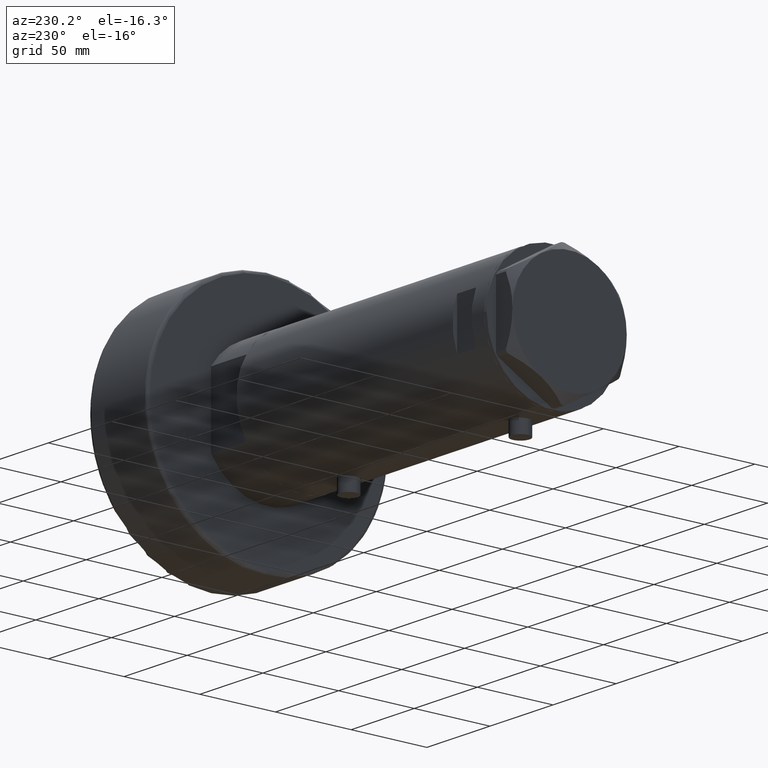
[diagram: clean part render]
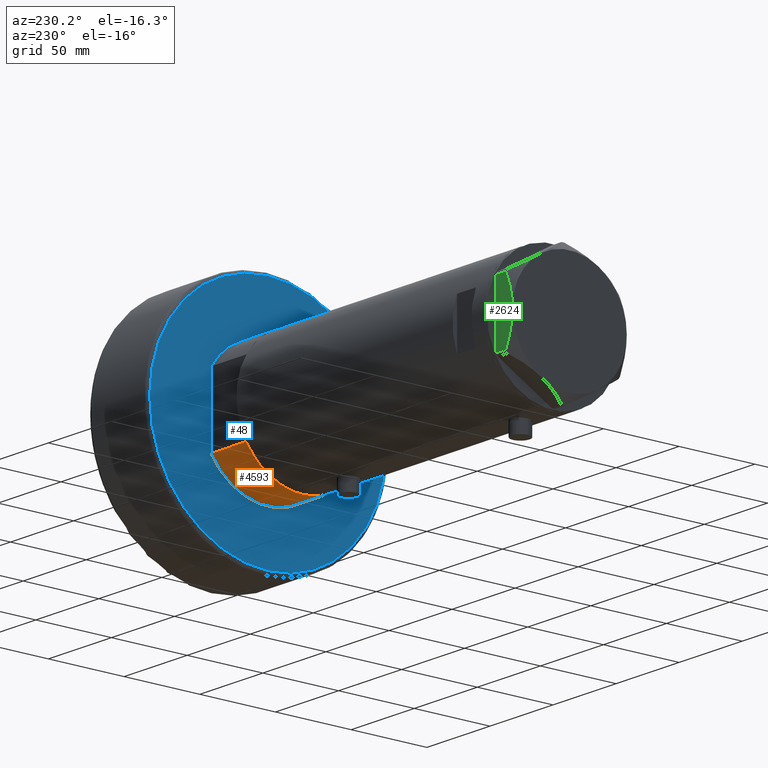
[diagram: same view with three faces highlighted in distinct colors, each labeled with its STEP entity id]
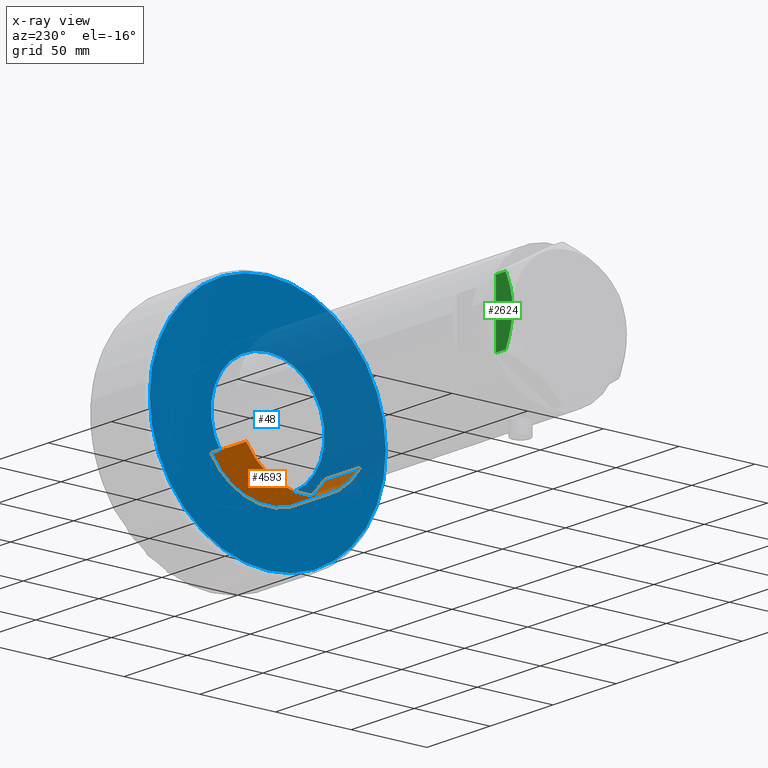
[diagram: x-ray of the same camera — body ghosted, the three highlighted faces saturated]
A machine part, auxiliary view with three faces highlighted in distinct colors.
The next image is the same camera in x-ray (body ghosted, the three faces saturated) — at least one of them is partly hidden behind the body in this view.
Their STEP definitions:

[orange] entity #4593 — the highlighted cylindrical surface (partial cylindrical patch) has radius 44 mm, axis along (-1, -0, 0).
#21 = AXIS2_PLACEMENT_3D ( 'NONE', #1070, #3760, #3362 ) ;
#32 = AXIS2_PLACEMENT_3D ( 'NONE', #3606, #3214, #1327 ) ;
#121 = AXIS2_PLACEMENT_3D ( 'NONE', #2471, #2080, #2880 ) ;
#223 = VERTEX_POINT ( 'NONE', #3506 ) ;
#242 = LINE ( 'NONE', #3164, #1391 ) ;
#502 = VERTEX_POINT ( 'NONE', #4930 ) ;
#667 = CARTESIAN_POINT ( 'NONE',  ( 23.01629857296780557, -37.50000000000000000, 27.89999999999999858 ) ) ;
#890 = DIRECTION ( 'NONE',  ( -0.000000000000000000, -0.000000000000000000, 1.000000000000000000 ) ) ;
#1004 = EDGE_CURVE ( 'NONE', #3836, #223, #3453, .T. ) ;
#1070 = CARTESIAN_POINT ( 'NONE',  ( 0.000000000000000000, 0.000000000000000000, 27.89999999999999858 ) ) ;
#1234 = DIRECTION ( 'NONE',  ( -0.000000000000000000, -0.000000000000000000, 1.000000000000000000 ) ) ;
#1327 = DIRECTION ( 'NONE',  ( -1.000000000000000000, 0.000000000000000000, 0.000000000000000000 ) ) ;
#1391 = VECTOR ( 'NONE', #890, 1000.000000000000000 ) ;
#1546 = EDGE_CURVE ( 'NONE', #3091, #3836, #2327, .T. ) ;
#1945 = CARTESIAN_POINT ( 'NONE',  ( 23.01629857296780557, -37.50000000000000000, 0.000000000000000000 ) ) ;
#2080 = DIRECTION ( 'NONE',  ( 0.000000000000000000, 0.000000000000000000, 1.000000000000000000 ) ) ;
#2225 = CIRCLE ( 'NONE', #121, 44.00000000000000000 ) ;
#2257 = ORIENTED_EDGE ( 'NONE', *, *, #3747, .T. ) ;
#2327 = LINE ( 'NONE', #1945, #3215 ) ;
#2471 = CARTESIAN_POINT ( 'NONE',  ( 0.000000000000000000, 0.000000000000000000, 0.000000000000000000 ) ) ;
#2506 = CARTESIAN_POINT ( 'NONE',  ( 23.01629857296780557, -37.50000000000000000, 0.000000000000000000 ) ) ;
#2880 = DIRECTION ( 'NONE',  ( 1.000000000000000000, 0.000000000000000000, 0.000000000000000000 ) ) ;
#2892 = EDGE_CURVE ( 'NONE', #3091, #502, #2225, .T. ) ;
#3091 = VERTEX_POINT ( 'NONE', #2506 ) ;
#3164 = CARTESIAN_POINT ( 'NONE',  ( 23.01629857296780557, 37.50000000000000000, 0.000000000000000000 ) ) ;
#3165 = EDGE_LOOP ( 'NONE', ( #4464, #4767, #3347, #2257 ) ) ;
#3214 = DIRECTION ( 'NONE',  ( -0.000000000000000000, -0.000000000000000000, -1.000000000000000000 ) ) ;
#3215 = VECTOR ( 'NONE', #1234, 1000.000000000000000 ) ;
#3347 = ORIENTED_EDGE ( 'NONE', *, *, #2892, .T. ) ;
#3362 = DIRECTION ( 'NONE',  ( 1.000000000000000000, 0.000000000000000000, 0.000000000000000000 ) ) ;
#3453 = CIRCLE ( 'NONE', #21, 44.00000000000000000 ) ;
#3506 = CARTESIAN_POINT ( 'NONE',  ( 23.01629857296780557, 37.50000000000000000, 27.89999999999999858 ) ) ;
#3606 = CARTESIAN_POINT ( 'NONE',  ( 0.000000000000000000, 0.000000000000000000, 27.89999999999999858 ) ) ;
#3747 = EDGE_CURVE ( 'NONE', #502, #223, #242, .T. ) ;
#3760 = DIRECTION ( 'NONE',  ( 0.000000000000000000, 0.000000000000000000, 1.000000000000000000 ) ) ;
#3836 = VERTEX_POINT ( 'NONE', #667 ) ;
#3983 = CYLINDRICAL_SURFACE ( 'NONE', #32, 44.00000000000000000 ) ;
#4464 = ORIENTED_EDGE ( 'NONE', *, *, #1004, .F. ) ;
#4593 = ADVANCED_FACE ( 'NONE', ( #4708 ), #3983, .T. ) ;
#4708 = FACE_OUTER_BOUND ( 'NONE', #3165, .T. ) ;
#4767 = ORIENTED_EDGE ( 'NONE', *, *, #1546, .F. ) ;
#4930 = CARTESIAN_POINT ( 'NONE',  ( 23.01629857296780557, 37.50000000000000000, 0.000000000000000000 ) ) ;

[blue] entity #48 — the highlighted planar face has unit normal (1, 0, -0).
#27 = DIRECTION ( 'NONE',  ( 0.000000000000000000, 0.000000000000000000, 1.000000000000000000 ) ) ;
#48 = ADVANCED_FACE ( 'NONE', ( #2453, #2864 ), #2477, .F. ) ;
#233 = EDGE_CURVE ( 'NONE', #2651, #3933, #2662, .T. ) ;
#359 = EDGE_LOOP ( 'NONE', ( #2735, #461 ) ) ;
#441 = DIRECTION ( 'NONE',  ( 0.000000000000000000, 0.000000000000000000, 1.000000000000000000 ) ) ;
#461 = ORIENTED_EDGE ( 'NONE', *, *, #1586, .T. ) ;
#493 = DIRECTION ( 'NONE',  ( 1.000000000000000000, 0.000000000000000000, 0.000000000000000000 ) ) ;
#496 = DIRECTION ( 'NONE',  ( 0.000000000000000000, 0.000000000000000000, 1.000000000000000000 ) ) ;
#763 = CIRCLE ( 'NONE', #4574, 78.00000000000000000 ) ;
#910 = CARTESIAN_POINT ( 'NONE',  ( 0.000000000000000000, 0.000000000000000000, 0.000000000000000000 ) ) ;
#914 = CIRCLE ( 'NONE', #2824, 37.50000000000000711 ) ;
#1204 = CARTESIAN_POINT ( 'NONE',  ( 0.000000000000000000, 0.000000000000000000, 0.000000000000000000 ) ) ;
#1287 = DIRECTION ( 'NONE',  ( 1.000000000000000000, 0.000000000000000000, -0.000000000000000000 ) ) ;
#1480 = CARTESIAN_POINT ( 'NONE',  ( -37.50000000000000711, 4.592425496802575156E-15, 0.000000000000000000 ) ) ;
#1586 = EDGE_CURVE ( 'NONE', #4690, #4028, #914, .T. ) ;
#1631 = CARTESIAN_POINT ( 'NONE',  ( 0.000000000000000000, 0.000000000000000000, 0.000000000000000000 ) ) ;
#1967 = AXIS2_PLACEMENT_3D ( 'NONE', #910, #27, #493 ) ;
#1980 = DIRECTION ( 'NONE',  ( 1.000000000000000000, 0.000000000000000000, 0.000000000000000000 ) ) ;
#2214 = EDGE_LOOP ( 'NONE', ( #3187, #2915 ) ) ;
#2453 = FACE_OUTER_BOUND ( 'NONE', #2214, .T. ) ;
#2477 = PLANE ( 'NONE',  #4484 ) ;
#2651 = VERTEX_POINT ( 'NONE', #4921 ) ;
#2662 = CIRCLE ( 'NONE', #3051, 78.00000000000000000 ) ;
#2733 = DIRECTION ( 'NONE',  ( -0.000000000000000000, -0.000000000000000000, -1.000000000000000000 ) ) ;
#2735 = ORIENTED_EDGE ( 'NONE', *, *, #2800, .T. ) ;
#2800 = EDGE_CURVE ( 'NONE', #4028, #4690, #2912, .T. ) ;
#2824 = AXIS2_PLACEMENT_3D ( 'NONE', #3865, #441, #1980 ) ;
#2864 = FACE_BOUND ( 'NONE', #359, .T. ) ;
#2912 = CIRCLE ( 'NONE', #1967, 37.50000000000000711 ) ;
#2915 = ORIENTED_EDGE ( 'NONE', *, *, #4032, .T. ) ;
#3051 = AXIS2_PLACEMENT_3D ( 'NONE', #1631, #3149, #4312 ) ;
#3149 = DIRECTION ( 'NONE',  ( -0.000000000000000000, -0.000000000000000000, -1.000000000000000000 ) ) ;
#3187 = ORIENTED_EDGE ( 'NONE', *, *, #233, .T. ) ;
#3635 = CARTESIAN_POINT ( 'NONE',  ( -78.00000000000000000, 9.674709713264090904E-15, 0.000000000000000000 ) ) ;
#3865 = CARTESIAN_POINT ( 'NONE',  ( 0.000000000000000000, 0.000000000000000000, 0.000000000000000000 ) ) ;
#3933 = VERTEX_POINT ( 'NONE', #3635 ) ;
#3976 = CARTESIAN_POINT ( 'NONE',  ( 0.000000000000000000, 0.000000000000000000, 0.000000000000000000 ) ) ;
#4028 = VERTEX_POINT ( 'NONE', #4195 ) ;
#4032 = EDGE_CURVE ( 'NONE', #3933, #2651, #763, .T. ) ;
#4195 = CARTESIAN_POINT ( 'NONE',  ( 37.50000000000000711, 0.000000000000000000, 0.000000000000000000 ) ) ;
#4312 = DIRECTION ( 'NONE',  ( 1.000000000000000000, 0.000000000000000000, 0.000000000000000000 ) ) ;
#4484 = AXIS2_PLACEMENT_3D ( 'NONE', #3976, #496, #1287 ) ;
#4574 = AXIS2_PLACEMENT_3D ( 'NONE', #1204, #2733, #4607 ) ;
#4607 = DIRECTION ( 'NONE',  ( 1.000000000000000000, 0.000000000000000000, 0.000000000000000000 ) ) ;
#4690 = VERTEX_POINT ( 'NONE', #1480 ) ;
#4921 = CARTESIAN_POINT ( 'NONE',  ( 78.00000000000000000, 0.000000000000000000, 0.000000000000000000 ) ) ;

[green] entity #2624 — the highlighted planar face has unit normal (0, -1, -0).
#11 = VECTOR ( 'NONE', #1657, 1000.000000000000000 ) ;
#433 = B_SPLINE_CURVE_WITH_KNOTS ( 'NONE', 3,
 ( #3096, #1991, #3500, #4277, #2315, #3141, #778, #2387, #2775, #4560 ),
 .UNSPECIFIED., .F., .F.,
 ( 4, 2, 2, 2, 4 ),
 ( 0.05601050456479946676, 0.06138217239161374711, 0.06406800630502089422, 0.06675384021842803439, 0.07749717587205659508 ),
 .UNSPECIFIED. ) ;
#559 = ORIENTED_EDGE ( 'NONE', *, *, #602, .T. ) ;
#602 = EDGE_CURVE ( 'NONE', #869, #4685, #3883, .T. ) ;
#694 = CARTESIAN_POINT ( 'NONE',  ( 37.75000000000000000, 19.05362936076134162, 8.470554105526112210 ) ) ;
#718 = CARTESIAN_POINT ( 'NONE',  ( 37.75000000000000000, 14.04742653794396823, 10.50092616350622166 ) ) ;
#739 = CARTESIAN_POINT ( 'NONE',  ( 37.75000000000000711, 1.802777518484591547E-14, 13.00000000000000000 ) ) ;
#778 = CARTESIAN_POINT ( 'NONE',  ( 37.75000000000002132, -11.46926194450820802, 11.30493988086502632 ) ) ;
#869 = VERTEX_POINT ( 'NONE', #1272 ) ;
#1059 = CARTESIAN_POINT ( 'NONE',  ( 37.75000000000000000, 19.86857906850807964, 8.096480699986591034 ) ) ;
#1102 = ORIENTED_EDGE ( 'NONE', *, *, #2565, .F. ) ;
#1264 = EDGE_LOOP ( 'NONE', ( #3309, #2745, #559, #4378, #1102 ) ) ;
#1272 = CARTESIAN_POINT ( 'NONE',  ( 37.75000000000002132, -20.67497266190835958, 0.000000000000000000 ) ) ;
#1493 = CARTESIAN_POINT ( 'NONE',  ( 37.75000000000000000, 20.67497266190835958, 7.709124142616976094 ) ) ;
#1516 = PLANE ( 'NONE',  #3471 ) ;
#1592 = CARTESIAN_POINT ( 'NONE',  ( 37.75000000000002132, -20.67497266190835958, 13.00000000000000000 ) ) ;
#1657 = DIRECTION ( 'NONE',  ( -4.775569585389645902E-16, 1.000000000000000000, 0.000000000000000000 ) ) ;
#1733 = VERTEX_POINT ( 'NONE', #3538 ) ;
#1830 = CARTESIAN_POINT ( 'NONE',  ( 37.75000000000000000, 20.67497266190835958, 13.00000000000000000 ) ) ;
#1842 = DIRECTION ( 'NONE',  ( -1.000000000000000000, -4.775569585389645902E-16, 0.000000000000000000 ) ) ;
#1903 = CARTESIAN_POINT ( 'NONE',  ( 37.75000000000000711, 0.9015134592203699615, 12.99999999999999112 ) ) ;
#1991 = CARTESIAN_POINT ( 'NONE',  ( 37.75000000000001421, -19.06473524669325315, 8.482612457517156201 ) ) ;
#2281 = CARTESIAN_POINT ( 'NONE',  ( 37.75000000000000000, 1.811728074765807994, 12.96720910498919466 ) ) ;
#2308 = CARTESIAN_POINT ( 'NONE',  ( 37.75000000000000711, 4.503994958793054337, 12.74237531377021604 ) ) ;
#2315 = CARTESIAN_POINT ( 'NONE',  ( 37.75000000000002132, -14.04433099034386778, 10.48027127384610679 ) ) ;
#2326 = CARTESIAN_POINT ( 'NONE',  ( 37.75000000000000711, 3.611424898442247233, 12.83826937481875596 ) ) ;
#2335 = EDGE_CURVE ( 'NONE', #4685, #4213, #4176, .T. ) ;
#2357 = B_SPLINE_CURVE_WITH_KNOTS ( 'NONE', 3,
 ( #739, #1903, #2281, #2326, #2308, #4550, #2642, #4933, #718, #4121, #2981, #694, #1059, #1493 ),
 .UNSPECIFIED., .F., .F.,
 ( 4, 2, 2, 2, 2, 2, 4 ),
 ( 0.07749717587205659508, 0.08017617902235897598, 0.08285518217266137075, 0.08821318847326614643, 0.09357119477387092210, 0.09625019792417330300, 0.09892920107447569777 ),
 .UNSPECIFIED. ) ;
#2387 = CARTESIAN_POINT ( 'NONE',  ( 37.75000000000000711, -7.143641079404811300, 12.47474846747315347 ) ) ;
#2565 = EDGE_CURVE ( 'NONE', #4840, #4213, #2357, .T. ) ;
#2624 = ADVANCED_FACE ( 'NONE', ( #2692 ), #1516, .F. ) ;
#2642 = CARTESIAN_POINT ( 'NONE',  ( 37.75000000000000711, 8.905753572404311313, 11.99914237172014353 ) ) ;
#2665 = DIRECTION ( 'NONE',  ( 4.775569585389645902E-16, -1.000000000000000000, 0.000000000000000000 ) ) ;
#2692 = FACE_OUTER_BOUND ( 'NONE', #1264, .T. ) ;
#2702 = CARTESIAN_POINT ( 'NONE',  ( 37.75000000000002132, -21.79497266190837124, 0.000000000000000000 ) ) ;
#2745 = ORIENTED_EDGE ( 'NONE', *, *, #3958, .T. ) ;
#2775 = CARTESIAN_POINT ( 'NONE',  ( 37.75000000000000000, -3.615248338761618552, 12.99999999999998934 ) ) ;
#2953 = CARTESIAN_POINT ( 'NONE',  ( 37.75000000000000000, 20.67497266190835958, 0.000000000000000000 ) ) ;
#2981 = CARTESIAN_POINT ( 'NONE',  ( 37.75000000000000000, 17.40390235304479560, 9.187919079516760235 ) ) ;
#3096 = CARTESIAN_POINT ( 'NONE',  ( 37.75000000000002132, -20.67497266190837024, 7.709124142616982311 ) ) ;
#3141 = CARTESIAN_POINT ( 'NONE',  ( 37.75000000000001421, -12.33018559404072256, 11.04557586999680296 ) ) ;
#3180 = CARTESIAN_POINT ( 'NONE',  ( 37.75000000000000000, 20.67497266190835958, 7.709124142616976094 ) ) ;
#3309 = ORIENTED_EDGE ( 'NONE', *, *, #3370, .F. ) ;
#3370 = EDGE_CURVE ( 'NONE', #1733, #4840, #433, .T. ) ;
#3419 = DIRECTION ( 'NONE',  ( 0.000000000000000000, 0.000000000000000000, 1.000000000000000000 ) ) ;
#3471 = AXIS2_PLACEMENT_3D ( 'NONE', #3771, #1842, #2665 ) ;
#3490 = LINE ( 'NONE', #1592, #4894 ) ;
#3500 = CARTESIAN_POINT ( 'NONE',  ( 37.75000000000002132, -17.42329546264822682, 9.202188366597432889 ) ) ;
#3538 = CARTESIAN_POINT ( 'NONE',  ( 37.75000000000002132, -20.67497266190837024, 7.709124142616982311 ) ) ;
#3771 = CARTESIAN_POINT ( 'NONE',  ( 37.75000000000002132, -21.79497266190837124, 13.00000000000000000 ) ) ;
#3883 = LINE ( 'NONE', #2702, #11 ) ;
#3898 = DIRECTION ( 'NONE',  ( 0.000000000000000000, 0.000000000000000000, -1.000000000000000000 ) ) ;
#3954 = VECTOR ( 'NONE', #3419, 1000.000000000000000 ) ;
#3958 = EDGE_CURVE ( 'NONE', #1733, #869, #3490, .T. ) ;
#4121 = CARTESIAN_POINT ( 'NONE',  ( 37.75000000000000711, 16.56731140591521978, 9.531835068628826235 ) ) ;
#4176 = LINE ( 'NONE', #1830, #3954 ) ;
#4213 = VERTEX_POINT ( 'NONE', #3180 ) ;
#4277 = CARTESIAN_POINT ( 'NONE',  ( 37.75000000000001421, -14.89874562435959504, 10.17375260246623547 ) ) ;
#4378 = ORIENTED_EDGE ( 'NONE', *, *, #2335, .T. ) ;
#4550 = CARTESIAN_POINT ( 'NONE',  ( 37.75000000000000000, 7.161343005612795132, 12.36677985830370829 ) ) ;
#4560 = CARTESIAN_POINT ( 'NONE',  ( 37.75000000000000711, 1.802777518484591547E-14, 13.00000000000000000 ) ) ;
#4685 = VERTEX_POINT ( 'NONE', #2953 ) ;
#4833 = CARTESIAN_POINT ( 'NONE',  ( 37.75000000000000711, 1.802777518484591547E-14, 13.00000000000000000 ) ) ;
#4840 = VERTEX_POINT ( 'NONE', #4833 ) ;
#4894 = VECTOR ( 'NONE', #3898, 1000.000000000000000 ) ;
#4933 = CARTESIAN_POINT ( 'NONE',  ( 37.75000000000000711, 12.34877760086738441, 11.06613894200179260 ) ) ;